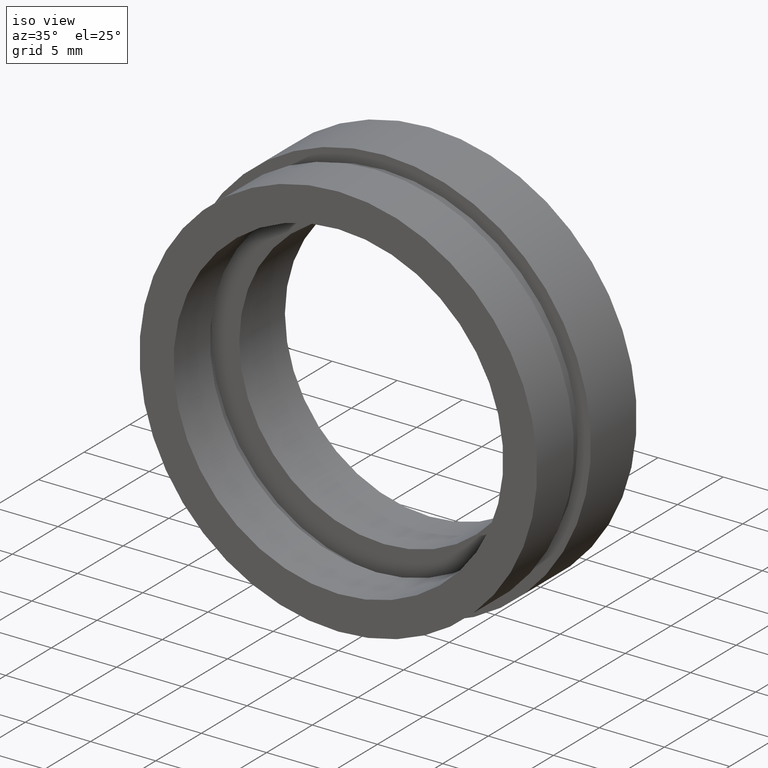
[diagram: clean part render]
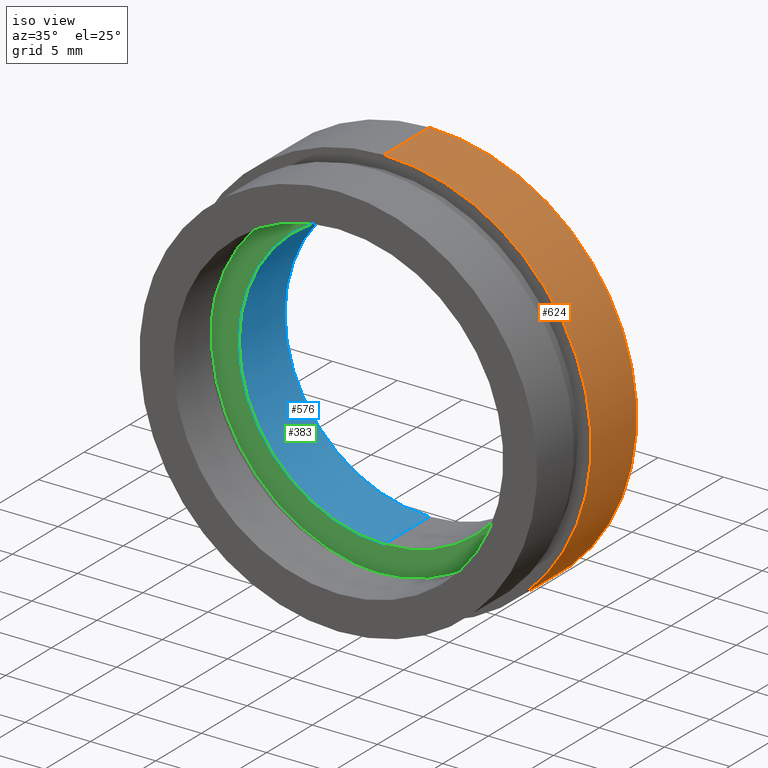
[diagram: same view with three faces highlighted in distinct colors, each labeled with its STEP entity id]
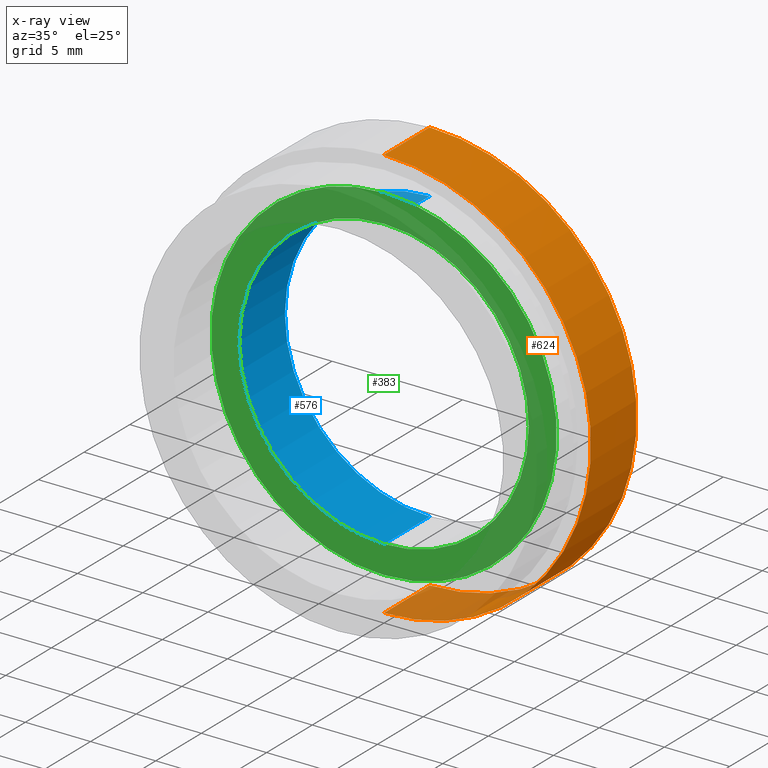
[diagram: x-ray of the same camera — body ghosted, the three highlighted faces saturated]
A machine part, iso view with three faces highlighted in distinct colors.
The next image is the same camera in x-ray (body ghosted, the three faces saturated) — at least one of them is partly hidden behind the body in this view.
Their STEP definitions:

[orange] entity #624 — the highlighted cylindrical surface (partial cylindrical patch) has radius 15.875 mm, axis along (-0, 1, -0).
#5 = CARTESIAN_POINT ( 'NONE',  ( 0.0000000000000000000, 5.000000000000000900, 15.87500000000000000 ) ) ;
#15 = VERTEX_POINT ( 'NONE', #156 ) ;
#20 = AXIS2_PLACEMENT_3D ( 'NONE', #531, #187, #331 ) ;
#25 = CARTESIAN_POINT ( 'NONE',  ( 0.0000000000000000000, 13.74468085106383300, 15.87500000000000000 ) ) ;
#50 = VERTEX_POINT ( 'NONE', #5 ) ;
#92 = LINE ( 'NONE', #25, #469 ) ;
#105 = ORIENTED_EDGE ( 'NONE', *, *, #322, .T. ) ;
#131 = CARTESIAN_POINT ( 'NONE',  ( 0.0000000000000000000, 10.00000000000000000, 15.87500000000000000 ) ) ;
#139 = DIRECTION ( 'NONE',  ( 0.0000000000000000000, 0.0000000000000000000, 1.000000000000000000 ) ) ;
#151 = AXIS2_PLACEMENT_3D ( 'NONE', #548, #202, #505 ) ;
#154 = AXIS2_PLACEMENT_3D ( 'NONE', #419, #224, #139 ) ;
#156 = CARTESIAN_POINT ( 'NONE',  ( 1.944126793646423200E-015, 10.00000000000000000, -15.87500000000000000 ) ) ;
#157 = CIRCLE ( 'NONE', #151, 15.87500000000000000 ) ;
#187 = DIRECTION ( 'NONE',  ( -0.0000000000000000000, 1.000000000000000000, -0.0000000000000000000 ) ) ;
#202 = DIRECTION ( 'NONE',  ( -0.0000000000000000000, 1.000000000000000000, -0.0000000000000000000 ) ) ;
#214 = VERTEX_POINT ( 'NONE', #310 ) ;
#224 = DIRECTION ( 'NONE',  ( -0.0000000000000000000, 1.000000000000000000, -0.0000000000000000000 ) ) ;
#265 = CYLINDRICAL_SURFACE ( 'NONE', #154, 15.87500000000000000 ) ;
#270 = EDGE_CURVE ( 'NONE', #452, #15, #157, .T. ) ;
#281 = DIRECTION ( 'NONE',  ( -0.0000000000000000000, 1.000000000000000000, -0.0000000000000000000 ) ) ;
#293 = VECTOR ( 'NONE', #374, 1000.000000000000000 ) ;
#310 = CARTESIAN_POINT ( 'NONE',  ( 1.944126793646423200E-015, 5.000000000000000900, -15.87500000000000000 ) ) ;
#322 = EDGE_CURVE ( 'NONE', #50, #214, #481, .T. ) ;
#331 = DIRECTION ( 'NONE',  ( 0.0000000000000000000, 0.0000000000000000000, 1.000000000000000000 ) ) ;
#339 = EDGE_CURVE ( 'NONE', #50, #452, #92, .T. ) ;
#374 = DIRECTION ( 'NONE',  ( -0.0000000000000000000, 1.000000000000000000, -0.0000000000000000000 ) ) ;
#419 = CARTESIAN_POINT ( 'NONE',  ( 0.0000000000000000000, 13.74468085106383300, 0.0000000000000000000 ) ) ;
#423 = EDGE_LOOP ( 'NONE', ( #105, #439, #552, #500 ) ) ;
#427 = CARTESIAN_POINT ( 'NONE',  ( 1.944126793646423200E-015, 13.74468085106383300, -15.87500000000000000 ) ) ;
#439 = ORIENTED_EDGE ( 'NONE', *, *, #583, .T. ) ;
#452 = VERTEX_POINT ( 'NONE', #131 ) ;
#469 = VECTOR ( 'NONE', #281, 1000.000000000000000 ) ;
#481 = CIRCLE ( 'NONE', #20, 15.87500000000000000 ) ;
#500 = ORIENTED_EDGE ( 'NONE', *, *, #339, .F. ) ;
#505 = DIRECTION ( 'NONE',  ( 0.0000000000000000000, 0.0000000000000000000, 1.000000000000000000 ) ) ;
#531 = CARTESIAN_POINT ( 'NONE',  ( 0.0000000000000000000, 5.000000000000000900, 0.0000000000000000000 ) ) ;
#539 = FACE_OUTER_BOUND ( 'NONE', #423, .T. ) ;
#548 = CARTESIAN_POINT ( 'NONE',  ( 0.0000000000000000000, 10.00000000000000000, 0.0000000000000000000 ) ) ;
#552 = ORIENTED_EDGE ( 'NONE', *, *, #270, .F. ) ;
#553 = LINE ( 'NONE', #427, #293 ) ;
#583 = EDGE_CURVE ( 'NONE', #214, #15, #553, .T. ) ;
#624 = ADVANCED_FACE ( 'NONE', ( #539 ), #265, .T. ) ;

[blue] entity #576 — the highlighted cylindrical surface (partial cylindrical patch) has radius 11.1 mm, axis along (-0, 1, -0).
#2 = EDGE_CURVE ( 'NONE', #604, #603, #29, .T. ) ;
#7 = DIRECTION ( 'NONE',  ( -0.0000000000000000000, 1.000000000000000000, -0.0000000000000000000 ) ) ;
#13 = DIRECTION ( 'NONE',  ( 0.0000000000000000000, 0.0000000000000000000, 1.000000000000000000 ) ) ;
#24 = DIRECTION ( 'NONE',  ( -0.0000000000000000000, 1.000000000000000000, -0.0000000000000000000 ) ) ;
#29 = CIRCLE ( 'NONE', #112, 11.10000000000000000 ) ;
#34 = EDGE_LOOP ( 'NONE', ( #425, #179, #278, #554 ) ) ;
#36 = CYLINDRICAL_SURFACE ( 'NONE', #272, 11.10000000000000000 ) ;
#45 = VERTEX_POINT ( 'NONE', #171 ) ;
#51 = DIRECTION ( 'NONE',  ( -0.0000000000000000000, 1.000000000000000000, -0.0000000000000000000 ) ) ;
#86 = CARTESIAN_POINT ( 'NONE',  ( 0.0000000000000000000, 9.999999999999998200, 11.10000000000000000 ) ) ;
#112 = AXIS2_PLACEMENT_3D ( 'NONE', #408, #24, #13 ) ;
#122 = VERTEX_POINT ( 'NONE', #433 ) ;
#130 = EDGE_CURVE ( 'NONE', #45, #603, #343, .T. ) ;
#136 = LINE ( 'NONE', #336, #393 ) ;
#148 = EDGE_CURVE ( 'NONE', #122, #45, #462, .T. ) ;
#171 = CARTESIAN_POINT ( 'NONE',  ( 0.0000000000000000000, 4.999999999999997300, 11.10000000000000000 ) ) ;
#179 = ORIENTED_EDGE ( 'NONE', *, *, #417, .T. ) ;
#182 = CARTESIAN_POINT ( 'NONE',  ( 0.0000000000000000000, 13.74468085106383300, 0.0000000000000000000 ) ) ;
#201 = DIRECTION ( 'NONE',  ( -0.0000000000000000000, 1.000000000000000000, -0.0000000000000000000 ) ) ;
#208 = VECTOR ( 'NONE', #7, 1000.000000000000000 ) ;
#219 = CARTESIAN_POINT ( 'NONE',  ( 0.0000000000000000000, 13.74468085106383300, 11.10000000000000000 ) ) ;
#249 = DIRECTION ( 'NONE',  ( 0.0000000000000000000, 0.0000000000000000000, 1.000000000000000000 ) ) ;
#272 = AXIS2_PLACEMENT_3D ( 'NONE', #182, #430, #527 ) ;
#278 = ORIENTED_EDGE ( 'NONE', *, *, #2, .T. ) ;
#336 = CARTESIAN_POINT ( 'NONE',  ( 1.359357947053562200E-015, 13.74468085106383300, -11.10000000000000000 ) ) ;
#343 = LINE ( 'NONE', #219, #208 ) ;
#393 = VECTOR ( 'NONE', #51, 1000.000000000000000 ) ;
#398 = CARTESIAN_POINT ( 'NONE',  ( 0.0000000000000000000, 4.999999999999997300, 0.0000000000000000000 ) ) ;
#408 = CARTESIAN_POINT ( 'NONE',  ( 0.0000000000000000000, 9.999999999999998200, 0.0000000000000000000 ) ) ;
#417 = EDGE_CURVE ( 'NONE', #122, #604, #136, .T. ) ;
#425 = ORIENTED_EDGE ( 'NONE', *, *, #148, .F. ) ;
#430 = DIRECTION ( 'NONE',  ( -0.0000000000000000000, 1.000000000000000000, -0.0000000000000000000 ) ) ;
#433 = CARTESIAN_POINT ( 'NONE',  ( 1.359357947053562200E-015, 4.999999999999997300, -11.10000000000000000 ) ) ;
#462 = CIRCLE ( 'NONE', #623, 11.10000000000000000 ) ;
#527 = DIRECTION ( 'NONE',  ( 0.0000000000000000000, 0.0000000000000000000, 1.000000000000000000 ) ) ;
#554 = ORIENTED_EDGE ( 'NONE', *, *, #130, .F. ) ;
#576 = ADVANCED_FACE ( 'NONE', ( #598 ), #36, .F. ) ;
#598 = FACE_OUTER_BOUND ( 'NONE', #34, .T. ) ;
#603 = VERTEX_POINT ( 'NONE', #86 ) ;
#604 = VERTEX_POINT ( 'NONE', #615 ) ;
#615 = CARTESIAN_POINT ( 'NONE',  ( 1.359357947053562200E-015, 9.999999999999998200, -11.10000000000000000 ) ) ;
#623 = AXIS2_PLACEMENT_3D ( 'NONE', #398, #201, #249 ) ;

[green] entity #383 — the highlighted planar face has unit normal (-0, 1, 0).
#9 = CIRCLE ( 'NONE', #371, 13.25000000000000000 ) ;
#18 = DIRECTION ( 'NONE',  ( -0.0000000000000000000, 1.000000000000000000, -0.0000000000000000000 ) ) ;
#38 = PLANE ( 'NONE',  #456 ) ;
#42 = EDGE_LOOP ( 'NONE', ( #289, #551 ) ) ;
#45 = VERTEX_POINT ( 'NONE', #171 ) ;
#58 = DIRECTION ( 'NONE',  ( -0.0000000000000000000, 1.000000000000000000, -0.0000000000000000000 ) ) ;
#122 = VERTEX_POINT ( 'NONE', #433 ) ;
#148 = EDGE_CURVE ( 'NONE', #122, #45, #462, .T. ) ;
#171 = CARTESIAN_POINT ( 'NONE',  ( 0.0000000000000000000, 4.999999999999997300, 11.10000000000000000 ) ) ;
#189 = VERTEX_POINT ( 'NONE', #222 ) ;
#201 = DIRECTION ( 'NONE',  ( -0.0000000000000000000, 1.000000000000000000, -0.0000000000000000000 ) ) ;
#204 = AXIS2_PLACEMENT_3D ( 'NONE', #357, #18, #312 ) ;
#222 = CARTESIAN_POINT ( 'NONE',  ( 1.622657008870242900E-015, 4.999999999999999100, -13.25000000000000000 ) ) ;
#249 = DIRECTION ( 'NONE',  ( 0.0000000000000000000, 0.0000000000000000000, 1.000000000000000000 ) ) ;
#253 = ORIENTED_EDGE ( 'NONE', *, *, #391, .F. ) ;
#269 = CARTESIAN_POINT ( 'NONE',  ( 0.0000000000000000000, 4.999999999999997300, 0.0000000000000000000 ) ) ;
#289 = ORIENTED_EDGE ( 'NONE', *, *, #621, .T. ) ;
#305 = VERTEX_POINT ( 'NONE', #402 ) ;
#312 = DIRECTION ( 'NONE',  ( 0.0000000000000000000, 0.0000000000000000000, 1.000000000000000000 ) ) ;
#316 = EDGE_CURVE ( 'NONE', #305, #189, #332, .T. ) ;
#321 = ORIENTED_EDGE ( 'NONE', *, *, #316, .F. ) ;
#332 = CIRCLE ( 'NONE', #204, 13.25000000000000000 ) ;
#337 = DIRECTION ( 'NONE',  ( -0.0000000000000000000, 1.000000000000000000, 0.0000000000000000000 ) ) ;
#357 = CARTESIAN_POINT ( 'NONE',  ( 0.0000000000000000000, 4.999999999999999100, 0.0000000000000000000 ) ) ;
#365 = DIRECTION ( 'NONE',  ( -0.0000000000000000000, 1.000000000000000000, -0.0000000000000000000 ) ) ;
#371 = AXIS2_PLACEMENT_3D ( 'NONE', #403, #58, #514 ) ;
#383 = ADVANCED_FACE ( 'NONE', ( #587, #517 ), #38, .F. ) ;
#388 = CARTESIAN_POINT ( 'NONE',  ( 13.25000000000000000, 4.999999999999999100, 0.0000000000000000000 ) ) ;
#391 = EDGE_CURVE ( 'NONE', #189, #305, #9, .T. ) ;
#398 = CARTESIAN_POINT ( 'NONE',  ( 0.0000000000000000000, 4.999999999999997300, 0.0000000000000000000 ) ) ;
#402 = CARTESIAN_POINT ( 'NONE',  ( 0.0000000000000000000, 4.999999999999999100, 13.25000000000000000 ) ) ;
#403 = CARTESIAN_POINT ( 'NONE',  ( 0.0000000000000000000, 4.999999999999999100, 0.0000000000000000000 ) ) ;
#405 = DIRECTION ( 'NONE',  ( 0.0000000000000000000, 0.0000000000000000000, 1.000000000000000000 ) ) ;
#413 = CIRCLE ( 'NONE', #429, 11.10000000000000000 ) ;
#429 = AXIS2_PLACEMENT_3D ( 'NONE', #269, #365, #488 ) ;
#433 = CARTESIAN_POINT ( 'NONE',  ( 1.359357947053562200E-015, 4.999999999999997300, -11.10000000000000000 ) ) ;
#456 = AXIS2_PLACEMENT_3D ( 'NONE', #388, #337, #405 ) ;
#462 = CIRCLE ( 'NONE', #623, 11.10000000000000000 ) ;
#488 = DIRECTION ( 'NONE',  ( 0.0000000000000000000, 0.0000000000000000000, 1.000000000000000000 ) ) ;
#514 = DIRECTION ( 'NONE',  ( 0.0000000000000000000, 0.0000000000000000000, 1.000000000000000000 ) ) ;
#517 = FACE_BOUND ( 'NONE', #42, .T. ) ;
#540 = EDGE_LOOP ( 'NONE', ( #321, #253 ) ) ;
#551 = ORIENTED_EDGE ( 'NONE', *, *, #148, .T. ) ;
#587 = FACE_OUTER_BOUND ( 'NONE', #540, .T. ) ;
#621 = EDGE_CURVE ( 'NONE', #45, #122, #413, .T. ) ;
#623 = AXIS2_PLACEMENT_3D ( 'NONE', #398, #201, #249 ) ;